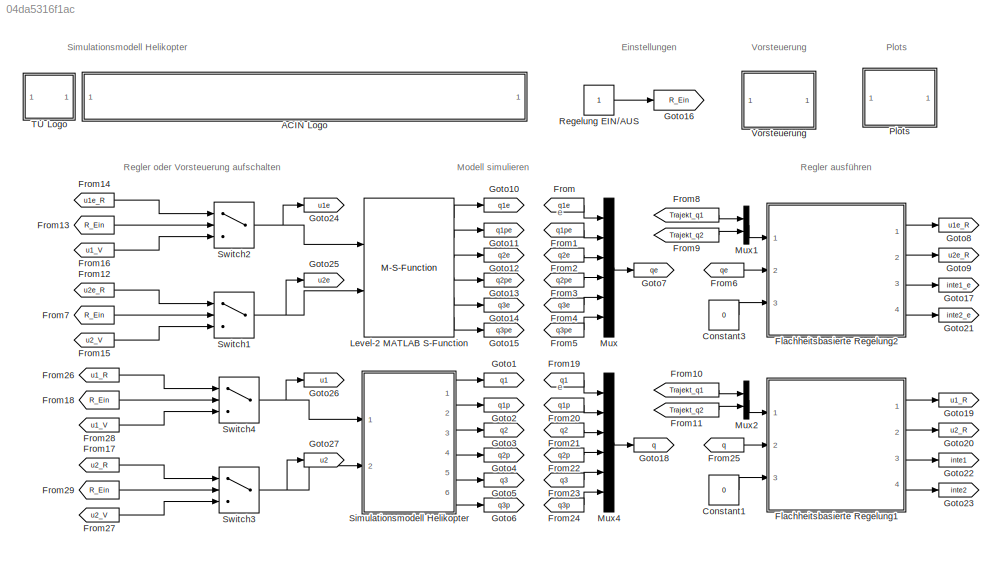
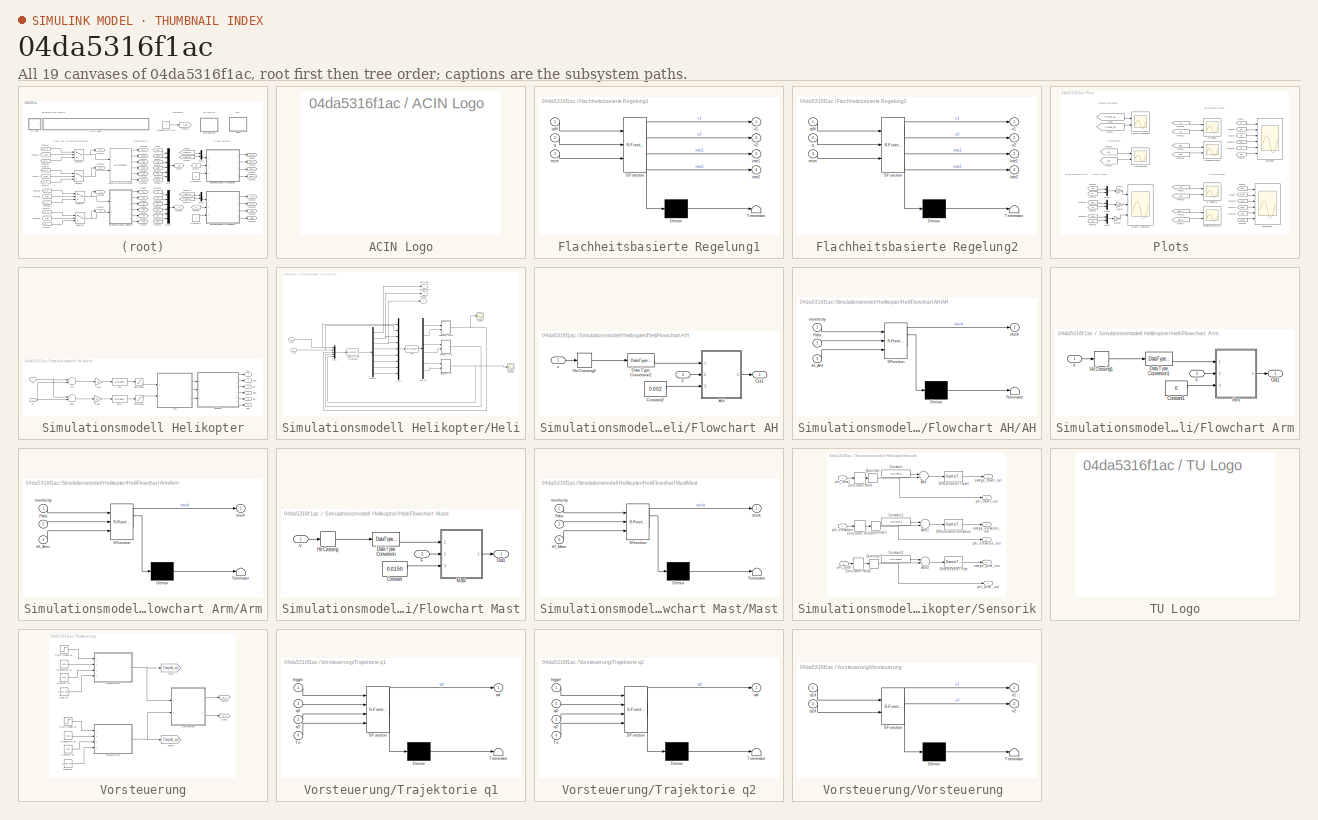
[diagram: thumbnail index - all 19 canvases of the model, root first then tree order]
MODEL slx_04da5316f1ac
KIND model
CONFIG AbsTol = auto
CONFIG FixedStep = auto
CONFIG InitFcn = Initialisierung
CONFIG MaxStep = auto
CONFIG MinStep = auto
CONFIG PostLoadFcn = , if any(exist('dsrtsu_mdlpostloadfcn', 'file') == [2, 3, 6]), try dsrtsu_mdlpostloadfcn('Execute', bdroot); catch fprintf('Error in PostLoadFcn (dsrtsu_mdlpostloadfcn) for model "%s":\n %s\n', bdroot, lasterr); end, end, \n
CONFIG RelTol = 1e-2
CONFIG SampleTimeConstraint = Unconstrained
CONFIG Solver = ode113
CONFIG SolverMode = Auto
CONFIG SolverName = ode113
CONFIG StartTime = 0.0
CONFIG StopTime = 50
BLOCK [SubSystem] ACIN Logo
  Ports = []
  RequestExecContextInheritance = off
  UserDataPersistent = on
  Variant = off
BLOCK [Constant] Constant1
  Value = 0
BLOCK [Constant] Constant3
  Value = 0
BLOCK [SubSystem] Flachheitsbasierte Regelung1
  ErrorFcn = Stateflow.Translate.translate
  PermitHierarchicalResolution = ExplicitOnly
  Ports = [3, 4]
  RequestExecContextInheritance = off
  SFBlockType = MATLAB Function
  TreatAsAtomicUnit = on
  Variant = off
BLOCK [Demux] Flachheitsbasierte Regelung1/ Demux 
  Outputs = 1
  Ports = [1, 1]
BLOCK [S-Function] Flachheitsbasierte Regelung1/ SFunction 
  EnableBusSupport = on
  FunctionName = sf_sfun
  Parameters = Ta,regPar,sysPar
  PortCounts = [3 5]
  Ports = [3, 5]
  SFunctionDeploymentMode = off
  Tag = Stateflow S-Function Sim_Helikopter 8
BLOCK [Terminator] Flachheitsbasierte Regelung1/ Terminator 
BLOCK [Outport] Flachheitsbasierte Regelung1/inte1
  IconDisplay = Port number
  Port = 3
BLOCK [Outport] Flachheitsbasierte Regelung1/inte2
  IconDisplay = Port number
  Port = 4
BLOCK [Inport] Flachheitsbasierte Regelung1/q
  IconDisplay = Port number
  Port = 2
BLOCK [Inport] Flachheitsbasierte Regelung1/qdV
  IconDisplay = Port number
BLOCK [Inport] Flachheitsbasierte Regelung1/reset
  IconDisplay = Port number
  Port = 3
BLOCK [Outport] Flachheitsbasierte Regelung1/v1
  IconDisplay = Port number
BLOCK [Outport] Flachheitsbasierte Regelung1/v2
  IconDisplay = Port number
  Port = 2
BLOCK [SubSystem] Flachheitsbasierte Regelung2
  ErrorFcn = Stateflow.Translate.translate
  PermitHierarchicalResolution = ExplicitOnly
  Ports = [3, 4]
  RequestExecContextInheritance = off
  SFBlockType = MATLAB Function
  TreatAsAtomicUnit = on
  Variant = off
BLOCK [Demux] Flachheitsbasierte Regelung2/ Demux 
  Outputs = 1
  Ports = [1, 1]
BLOCK [S-Function] Flachheitsbasierte Regelung2/ SFunction 
  EnableBusSupport = on
  FunctionName = sf_sfun
  Parameters = Ta,regPar,sysPar
  PortCounts = [3 5]
  Ports = [3, 5]
  SFunctionDeploymentMode = off
  Tag = Stateflow S-Function Sim_Helikopter 4
BLOCK [Terminator] Flachheitsbasierte Regelung2/ Terminator 
BLOCK [Outport] Flachheitsbasierte Regelung2/inte1
  IconDisplay = Port number
  Port = 3
BLOCK [Outport] Flachheitsbasierte Regelung2/inte2
  IconDisplay = Port number
  Port = 4
BLOCK [Inport] Flachheitsbasierte Regelung2/q
  IconDisplay = Port number
  Port = 2
BLOCK [Inport] Flachheitsbasierte Regelung2/qdV
  IconDisplay = Port number
BLOCK [Inport] Flachheitsbasierte Regelung2/reset
  IconDisplay = Port number
  Port = 3
BLOCK [Outport] Flachheitsbasierte Regelung2/v1
  IconDisplay = Port number
BLOCK [Outport] Flachheitsbasierte Regelung2/v2
  IconDisplay = Port number
  Port = 2
BLOCK [From] From
  GotoTag = q1e
  TagVisibility = global
BLOCK [From] From1
  GotoTag = q1pe
  TagVisibility = global
BLOCK [From] From10
  GotoTag = Trajekt_q1
  TagVisibility = global
BLOCK [From] From11
  GotoTag = Trajekt_q2
  TagVisibility = global
BLOCK [From] From12
  GotoTag = u2e_R
  TagVisibility = global
BLOCK [From] From13
  GotoTag = R_Ein
  TagVisibility = global
BLOCK [From] From14
  GotoTag = u1e_R
  TagVisibility = global
BLOCK [From] From15
  GotoTag = u2_V
  TagVisibility = global
BLOCK [From] From16
  GotoTag = u1_V
  TagVisibility = global
BLOCK [From] From17
  GotoTag = u2_R
  TagVisibility = global
BLOCK [From] From18
  GotoTag = R_Ein
  TagVisibility = global
BLOCK [From] From19
  GotoTag = q1
  TagVisibility = global
BLOCK [From] From2
  GotoTag = q2e
  TagVisibility = global
BLOCK [From] From20
  GotoTag = q1p
  TagVisibility = global
BLOCK [From] From21
  GotoTag = q2
  TagVisibility = global
BLOCK [From] From22
  GotoTag = q2p
  TagVisibility = global
BLOCK [From] From23
  GotoTag = q3
  TagVisibility = global
BLOCK [From] From24
  GotoTag = q3p
  TagVisibility = global
BLOCK [From] From25
  GotoTag = q
  TagVisibility = global
BLOCK [From] From26
  GotoTag = u1_R
  TagVisibility = global
BLOCK [From] From27
  GotoTag = u2_V
  TagVisibility = global
BLOCK [From] From28
  GotoTag = u1_V
  TagVisibility = global
BLOCK [From] From29
  GotoTag = R_Ein
  TagVisibility = global
BLOCK [From] From3
  GotoTag = q2pe
  TagVisibility = global
BLOCK [From] From4
  GotoTag = q3e
  TagVisibility = global
BLOCK [From] From5
  GotoTag = q3pe
  TagVisibility = global
BLOCK [From] From6
  GotoTag = qe
  TagVisibility = global
BLOCK [From] From7
  GotoTag = R_Ein
  TagVisibility = global
BLOCK [From] From8
  GotoTag = Trajekt_q1
  TagVisibility = global
BLOCK [From] From9
  GotoTag = Trajekt_q2
  TagVisibility = global
BLOCK [Goto] Goto1
  GotoTag = q1
  TagVisibility = global
BLOCK [Goto] Goto10
  GotoTag = q1e
  TagVisibility = global
BLOCK [Goto] Goto11
  GotoTag = q1pe
  TagVisibility = global
BLOCK [Goto] Goto12
  GotoTag = q2e
  TagVisibility = global
BLOCK [Goto] Goto13
  GotoTag = q2pe
  TagVisibility = global
BLOCK [Goto] Goto14
  GotoTag = q3e
  TagVisibility = global
BLOCK [Goto] Goto15
  GotoTag = q3pe
  TagVisibility = global
BLOCK [Goto] Goto16
  GotoTag = R_Ein
  TagVisibility = global
BLOCK [Goto] Goto17
  GotoTag = inte1_e
  TagVisibility = global
BLOCK [Goto] Goto18
  GotoTag = q
  TagVisibility = global
BLOCK [Goto] Goto19
  GotoTag = u1_R
  TagVisibility = global
BLOCK [Goto] Goto2
  GotoTag = q1p
  TagVisibility = global
BLOCK [Goto] Goto20
  GotoTag = u2_R
  TagVisibility = global
BLOCK [Goto] Goto21
  GotoTag = inte2_e
  TagVisibility = global
BLOCK [Goto] Goto22
  GotoTag = inte1
  TagVisibility = global
BLOCK [Goto] Goto23
  GotoTag = inte2
  TagVisibility = global
BLOCK [Goto] Goto24
  GotoTag = u1e
  TagVisibility = global
BLOCK [Goto] Goto25
  GotoTag = u2e
  TagVisibility = global
BLOCK [Goto] Goto26
  GotoTag = u1
  TagVisibility = global
BLOCK [Goto] Goto27
  GotoTag = u2
  TagVisibility = global
BLOCK [Goto] Goto3
  GotoTag = q2
  TagVisibility = global
BLOCK [Goto] Goto4
  GotoTag = q2p
  TagVisibility = global
BLOCK [Goto] Goto5
  GotoTag = q3
  TagVisibility = global
BLOCK [Goto] Goto6
  GotoTag = q3p
  TagVisibility = global
BLOCK [Goto] Goto7
  GotoTag = qe
  TagVisibility = global
BLOCK [Goto] Goto8
  GotoTag = u1e_R
  TagVisibility = global
BLOCK [Goto] Goto9
  GotoTag = u2e_R
  TagVisibility = global
BLOCK [M-S-Function] Level-2 MATLAB S-Function
  FunctionName = Heli_einfach
  Parameters = sysPar.xR [sysPar.a1 sysPar.a2 sysPar.a3 sysPar.b1 sysPar.b2 sysPar.b3]
  Ports = [2, 6]
BLOCK [Mux] Mux
  DisplayOption = bar
  Inputs = 6
  Ports = [6, 1]
BLOCK [Mux] Mux1
  DisplayOption = bar
  Inputs = 2
  Ports = [2, 1]
BLOCK [Mux] Mux2
  DisplayOption = bar
  Inputs = 2
  Ports = [2, 1]
BLOCK [Mux] Mux4
  DisplayOption = bar
  Inputs = 6
  Ports = [6, 1]
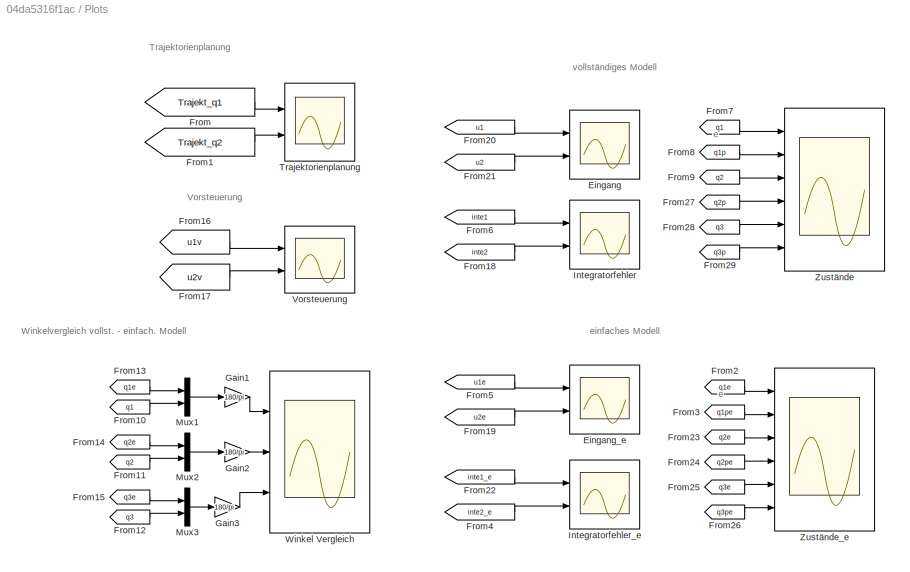
BLOCK [SubSystem] Plots 
  Ports = []
  RequestExecContextInheritance = off
  Variant = off
BLOCK [Scope] Plots /Eingang
  NumInputPorts = 2
  Ports = [2]
  ScopeSpecificationString = Simulink.scopes.TimeScopeBlockCfg('CurrentConfiguration', extmgr.ConfigurationSet(extmgr.Configuration('Core','General UI',true),extmgr.Configuration('Core','Source UI',true),extmgr.Configuration('Sources','WiredSimulink',true,'DataLoggingVariableName','ScopeData8'),extmgr.Configuration('Visuals','Time Domain',true,'SerializedDisplays',{struct('MinYLimReal','-0.25495','MaxYLimReal','0.91248','YLab...<+1964ch>
BLOCK [Scope] Plots /Eingang_e
  NumInputPorts = 2
  Ports = [2]
  ScopeSpecificationString = Simulink.scopes.TimeScopeBlockCfg('CurrentConfiguration', extmgr.ConfigurationSet(extmgr.Configuration('Core','General UI',true),extmgr.Configuration('Core','Source UI',true),extmgr.Configuration('Sources','WiredSimulink',true,'DataLoggingVariableName','ScopeData2'),extmgr.Configuration('Visuals','Time Domain',true,'SerializedDisplays',{struct('MinYLimReal','-0.19617','MaxYLimReal','1.21881','YLab...<+1984ch>
BLOCK [From] Plots /From
  GotoTag = Trajekt_q1
  TagVisibility = global
BLOCK [From] Plots /From1
  GotoTag = Trajekt_q2
  TagVisibility = global
BLOCK [From] Plots /From10
  GotoTag = q1
  TagVisibility = global
BLOCK [From] Plots /From11
  GotoTag = q2
  TagVisibility = global
BLOCK [From] Plots /From12
  GotoTag = q3
  TagVisibility = global
BLOCK [From] Plots /From13
  GotoTag = q1e
  TagVisibility = global
BLOCK [From] Plots /From14
  GotoTag = q2e
  TagVisibility = global
BLOCK [From] Plots /From15
  GotoTag = q3e
  TagVisibility = global
BLOCK [From] Plots /From16
  GotoTag = u1v
BLOCK [From] Plots /From17
  GotoTag = u2v
BLOCK [From] Plots /From18
  GotoTag = inte2
  TagVisibility = global
BLOCK [From] Plots /From19
  GotoTag = u2e
  TagVisibility = global
BLOCK [From] Plots /From2
  GotoTag = q1e
  TagVisibility = global
BLOCK [From] Plots /From20
  GotoTag = u1
  TagVisibility = global
BLOCK [From] Plots /From21
  GotoTag = u2
  TagVisibility = global
BLOCK [From] Plots /From22
  GotoTag = inte1_e
  TagVisibility = global
BLOCK [From] Plots /From23
  GotoTag = q2e
  TagVisibility = global
BLOCK [From] Plots /From24
  GotoTag = q2pe
  TagVisibility = global
BLOCK [From] Plots /From25
  GotoTag = q3e
  TagVisibility = global
BLOCK [From] Plots /From26
  GotoTag = q3pe
  TagVisibility = global
BLOCK [From] Plots /From27
  GotoTag = q2p
  TagVisibility = global
BLOCK [From] Plots /From28
  GotoTag = q3
  TagVisibility = global
BLOCK [From] Plots /From29
  GotoTag = q3p
  TagVisibility = global
BLOCK [From] Plots /From3
  GotoTag = q1pe
  TagVisibility = global
BLOCK [From] Plots /From4
  GotoTag = inte2_e
  TagVisibility = global
BLOCK [From] Plots /From5
  GotoTag = u1e
  TagVisibility = global
BLOCK [From] Plots /From6
  GotoTag = inte1
  TagVisibility = global
BLOCK [From] Plots /From7
  GotoTag = q1
  TagVisibility = global
BLOCK [From] Plots /From8
  GotoTag = q1p
  TagVisibility = global
BLOCK [From] Plots /From9
  GotoTag = q2
  TagVisibility = global
BLOCK [Gain] Plots /Gain1
  Gain = 180/pi
BLOCK [Gain] Plots /Gain2
  Gain = 180/pi
BLOCK [Gain] Plots /Gain3
  Gain = 180/pi
BLOCK [Scope] Plots /Integratorfehler
  NumInputPorts = 2
  Ports = [2]
  ScopeSpecificationString = Simulink.scopes.TimeScopeBlockCfg('CurrentConfiguration', extmgr.ConfigurationSet(extmgr.Configuration('Core','General UI',true),extmgr.Configuration('Core','Source UI',true),extmgr.Configuration('Sources','WiredSimulink',true,'DataLoggingVariableName','ScopeData1'),extmgr.Configuration('Visuals','Time Domain',true,'SerializedDisplays',{struct('MinYLimReal','-0.33497','MaxYLimReal','0.12383','YLab...<+1970ch>
BLOCK [Scope] Plots /Integratorfehler_e
  NumInputPorts = 2
  Ports = [2]
  ScopeSpecificationString = Simulink.scopes.TimeScopeBlockCfg('CurrentConfiguration', extmgr.ConfigurationSet(extmgr.Configuration('Core','General UI',true),extmgr.Configuration('Core','Source UI',true),extmgr.Configuration('Sources','WiredSimulink',true,'DataLoggingVariableName','ScopeData3'),extmgr.Configuration('Visuals','Time Domain',true,'SerializedDisplays',{struct('MinYLimReal','-0.00005','MaxYLimReal','0.00009','YLab...<+1971ch>
BLOCK [Mux] Plots /Mux1
  DisplayOption = bar
  Inputs = 2
  Ports = [2, 1]
BLOCK [Mux] Plots /Mux2
  DisplayOption = bar
  Inputs = 2
  Ports = [2, 1]
BLOCK [Mux] Plots /Mux3
  DisplayOption = bar
  Inputs = 2
  Ports = [2, 1]
BLOCK [Scope] Plots /Trajektorienplanung
  NumInputPorts = 2
  Ports = [2]
  ScopeSpecificationString = Simulink.scopes.TimeScopeBlockCfg('CurrentConfiguration', extmgr.ConfigurationSet(extmgr.Configuration('Core','General UI',true),extmgr.Configuration('Core','Source UI',true),extmgr.Configuration('Sources','WiredSimulink',true,'DataLoggingVariableName','ScopeData3'),extmgr.Configuration('Visuals','Time Domain',true,'SerializedDisplays',{struct('MinYLimReal','-1.44786','MaxYLimReal','7.14219','YLab...<+2126ch>
BLOCK [Scope] Plots /Vorsteuerung
  NumInputPorts = 2
  Ports = [2]
  ScopeSpecificationString = Simulink.scopes.TimeScopeBlockCfg('CurrentConfiguration', extmgr.ConfigurationSet(extmgr.Configuration('Core','General UI',true),extmgr.Configuration('Core','Source UI',true),extmgr.Configuration('Sources','WiredSimulink',true,'DataLoggingVariableName','ScopeData4'),extmgr.Configuration('Visuals','Time Domain',true,'SerializedDisplays',{struct('MinYLimReal','-0.12606','MaxYLimReal','1.24369','YLab...<+1973ch>
BLOCK [Scope] Plots /Winkel Vergleich
  NumInputPorts = 3
  Ports = [3]
  ScopeSpecificationString = Simulink.scopes.TimeScopeBlockCfg('CurrentConfiguration', extmgr.ConfigurationSet(extmgr.Configuration('Core','General UI',true),extmgr.Configuration('Core','Source UI',true),extmgr.Configuration('Sources','WiredSimulink',true,'DataLoggingVariableName','ScopeData2'),extmgr.Configuration('Visuals','Time Domain',true,'SerializedDisplays',{struct('MinYLimReal','-45.76355','MaxYLimReal','411.87195','Y...<+2771ch>
BLOCK [Scope] Plots /Zustände 
  NumInputPorts = 6
  Ports = [6]
  ScopeSpecificationString = Simulink.scopes.TimeScopeBlockCfg('CurrentConfiguration', extmgr.ConfigurationSet(extmgr.Configuration('Core','General UI',true),extmgr.Configuration('Core','Source UI',true),extmgr.Configuration('Sources','WiredSimulink',true,'DataLoggingVariableName','ScopeData1'),extmgr.Configuration('Visuals','Time Domain',true,'SerializedDisplays',{struct('MinYLimReal','-3.14677','MaxYLimReal','0.57889','YLab...<+4849ch>
BLOCK [Scope] Plots /Zustände_e
  NumInputPorts = 6
  Ports = [6]
  ScopeSpecificationString = Simulink.scopes.TimeScopeBlockCfg('CurrentConfiguration', extmgr.ConfigurationSet(extmgr.Configuration('Core','General UI',true),extmgr.Configuration('Core','Source UI',true),extmgr.Configuration('Sources','WiredSimulink',true,'DataLoggingVariableName','ScopeData6'),extmgr.Configuration('Visuals','Time Domain',true,'SerializedDisplays',{struct('MinYLimReal','-0.7854','MaxYLimReal','7.0686','YLabel...<+4830ch>
BLOCK [Constant] Regelung EIN//AUS
BLOCK [SubSystem] Simulationsmodell Helikopter
  Ports = [2, 6]
  RequestExecContextInheritance = off
  Variant = off
BLOCK [Sum] Simulationsmodell Helikopter/Add
  InputSameDT = off
  OutDataTypeStr = Inherit: Inherit via internal rule
  Ports = [2, 1]
  SaturateOnIntegerOverflow = off
BLOCK [Sum] Simulationsmodell Helikopter/Add1
  InputSameDT = off
  Inputs = +-
  OutDataTypeStr = Inherit: Inherit via internal rule
  Ports = [2, 1]
  SaturateOnIntegerOverflow = off
BLOCK [MATLABFcn] Simulationsmodell Helikopter/F2U
  MATLABFcn = F2U(u(1))
  Output1D = off
  OutputDimensions = 1
  Ports = [1, 1]
BLOCK [MATLABFcn] Simulationsmodell Helikopter/F2U1
  MATLABFcn = F2U(u(1))
  Output1D = off
  OutputDimensions = 1
  Ports = [1, 1]
BLOCK [Gain] Simulationsmodell Helikopter/Gain
  Gain = 1/2
  OutDataTypeStr = Inherit: Inherit via internal rule
  ParamDataTypeStr = Inherit: Inherit via internal rule
  SaturateOnIntegerOverflow = off
BLOCK [Gain] Simulationsmodell Helikopter/Gain1
  Gain = 1/2
  OutDataTypeStr = Inherit: Inherit via internal rule
  ParamDataTypeStr = Inherit: Inherit via internal rule
  SaturateOnIntegerOverflow = off
BLOCK [SubSystem] Simulationsmodell Helikopter/Heli
  Ports = [2, 3]
  RequestExecContextInheritance = off
  Variant = off
BLOCK [Demux] Simulationsmodell Helikopter/Heli/Demux
  Outputs = 8
  Ports = [1, 8]
BLOCK [Demux] Simulationsmodell Helikopter/Heli/Demux1
  Outputs = 6
  Ports = [1, 6]
BLOCK [SubSystem] Simulationsmodell Helikopter/Heli/Flowchart AH
  Ports = [2, 1]
  RequestExecContextInheritance = off
  Variant = off
BLOCK [SubSystem] Simulationsmodell Helikopter/Heli/Flowchart AH/AH
  ErrorFcn = Stateflow.Translate.translate
  PermitHierarchicalResolution = ExplicitOnly
  Ports = [3, 1]
  RequestExecContextInheritance = off
  SFBlockType = Chart
  TreatAsAtomicUnit = on
  Variant = off
BLOCK [Demux] Simulationsmodell Helikopter/Heli/Flowchart AH/AH/ Demux 
  Outputs = 1
  Ports = [1, 1]
BLOCK [S-Function] Simulationsmodell Helikopter/Heli/Flowchart AH/AH/ SFunction 
  EnableBusSupport = on
  FunctionName = sf_sfun
  PortCounts = [3 2]
  Ports = [3, 2]
  SFunctionDeploymentMode = off
  Tag = Stateflow S-Function Sim_Helikopter 5
BLOCK [Terminator] Simulationsmodell Helikopter/Heli/Flowchart AH/AH/ Terminator 
BLOCK [Inport] Simulationsmodell Helikopter/Heli/Flowchart AH/AH/Fabs
  IconDisplay = Port number
  Port = 2
BLOCK [Inport] Simulationsmodell Helikopter/Heli/Flowchart AH/AH/novelocity
  IconDisplay = Port number
BLOCK [Inport] Simulationsmodell Helikopter/Heli/Flowchart AH/AH/rH_AH
  IconDisplay = Port number
  Port = 3
BLOCK [Outport] Simulationsmodell Helikopter/Heli/Flowchart AH/AH/stuck
  IconDisplay = Port number
BLOCK [Constant] Simulationsmodell Helikopter/Heli/Flowchart AH/Constant2
  Value = 0.002
BLOCK [DataTypeConversion] Simulationsmodell Helikopter/Heli/Flowchart AH/Data Type Conversion2
  OutDataTypeStr = double
BLOCK [Inport] Simulationsmodell Helikopter/Heli/Flowchart AH/F
  IconDisplay = Port number
  Port = 2
BLOCK [HitCross] Simulationsmodell Helikopter/Heli/Flowchart AH/Hit Crossing2
  Ports = [1, 1]
  ZeroCross = off
BLOCK [Outport] Simulationsmodell Helikopter/Heli/Flowchart AH/Out1
  IconDisplay = Port number
BLOCK [Inport] Simulationsmodell Helikopter/Heli/Flowchart AH/v
  IconDisplay = Port number
BLOCK [SubSystem] Simulationsmodell Helikopter/Heli/Flowchart Arm
  Ports = [2, 1]
  RequestExecContextInheritance = off
  Variant = off
BLOCK [SubSystem] Simulationsmodell Helikopter/Heli/Flowchart Arm/Arm
  ErrorFcn = Stateflow.Translate.translate
  PermitHierarchicalResolution = ExplicitOnly
  Ports = [3, 1]
  RequestExecContextInheritance = off
  SFBlockType = Chart
  TreatAsAtomicUnit = on
  Variant = off
BLOCK [Demux] Simulationsmodell Helikopter/Heli/Flowchart Arm/Arm/ Demux 
  Outputs = 1
  Ports = [1, 1]
BLOCK [S-Function] Simulationsmodell Helikopter/Heli/Flowchart Arm/Arm/ SFunction 
  EnableBusSupport = on
  FunctionName = sf_sfun
  PortCounts = [3 2]
  Ports = [3, 2]
  SFunctionDeploymentMode = off
  Tag = Stateflow S-Function Sim_Helikopter 6
BLOCK [Terminator] Simulationsmodell Helikopter/Heli/Flowchart Arm/Arm/ Terminator 
BLOCK [Inport] Simulationsmodell Helikopter/Heli/Flowchart Arm/Arm/Fabs
  IconDisplay = Port number
  Port = 2
BLOCK [Inport] Simulationsmodell Helikopter/Heli/Flowchart Arm/Arm/novelocity
  IconDisplay = Port number
BLOCK [Inport] Simulationsmodell Helikopter/Heli/Flowchart Arm/Arm/rH_Arm
  IconDisplay = Port number
  Port = 3
BLOCK [Outport] Simulationsmodell Helikopter/Heli/Flowchart Arm/Arm/stuck
  IconDisplay = Port number
BLOCK [Constant] Simulationsmodell Helikopter/Heli/Flowchart Arm/Constant1
  Value = 0
BLOCK [DataTypeConversion] Simulationsmodell Helikopter/Heli/Flowchart Arm/Data Type Conversion1
  OutDataTypeStr = double
BLOCK [Inport] Simulationsmodell Helikopter/Heli/Flowchart Arm/F
  IconDisplay = Port number
  Port = 2
BLOCK [HitCross] Simulationsmodell Helikopter/Heli/Flowchart Arm/Hit Crossing1
  Ports = [1, 1]
  ZeroCross = off
BLOCK [Outport] Simulationsmodell Helikopter/Heli/Flowchart Arm/Out1
  IconDisplay = Port number
BLOCK [Inport] Simulationsmodell Helikopter/Heli/Flowchart Arm/v
  IconDisplay = Port number
BLOCK [SubSystem] Simulationsmodell Helikopter/Heli/Flowchart Mast
  Ports = [2, 1]
  RequestExecContextInheritance = off
  Variant = off
BLOCK [Constant] Simulationsmodell Helikopter/Heli/Flowchart Mast/Constant
  Value = 0.0150
BLOCK [DataTypeConversion] Simulationsmodell Helikopter/Heli/Flowchart Mast/Data Type Conversion
  OutDataTypeStr = double
BLOCK [Inport] Simulationsmodell Helikopter/Heli/Flowchart Mast/F
  IconDisplay = Port number
  Port = 2
BLOCK [HitCross] Simulationsmodell Helikopter/Heli/Flowchart Mast/Hit Crossing
  Ports = [1, 1]
  ZeroCross = off
BLOCK [SubSystem] Simulationsmodell Helikopter/Heli/Flowchart Mast/Mast
  ErrorFcn = Stateflow.Translate.translate
  PermitHierarchicalResolution = ExplicitOnly
  Ports = [3, 1]
  RequestExecContextInheritance = off
  SFBlockType = Chart
  TreatAsAtomicUnit = on
  Variant = off
BLOCK [Demux] Simulationsmodell Helikopter/Heli/Flowchart Mast/Mast/ Demux 
  Outputs = 1
  Ports = [1, 1]
BLOCK [S-Function] Simulationsmodell Helikopter/Heli/Flowchart Mast/Mast/ SFunction 
  EnableBusSupport = on
  FunctionName = sf_sfun
  PortCounts = [3 2]
  Ports = [3, 2]
  SFunctionDeploymentMode = off
  Tag = Stateflow S-Function Sim_Helikopter 7
BLOCK [Terminator] Simulationsmodell Helikopter/Heli/Flowchart Mast/Mast/ Terminator 
BLOCK [Inport] Simulationsmodell Helikopter/Heli/Flowchart Mast/Mast/Fabs
  IconDisplay = Port number
  Port = 2
BLOCK [Inport] Simulationsmodell Helikopter/Heli/Flowchart Mast/Mast/novelocity
  IconDisplay = Port number
BLOCK [Inport] Simulationsmodell Helikopter/Heli/Flowchart Mast/Mast/rH_Mast
  IconDisplay = Port number
  Port = 3
BLOCK [Outport] Simulationsmodell Helikopter/Heli/Flowchart Mast/Mast/stuck
  IconDisplay = Port number
BLOCK [Outport] Simulationsmodell Helikopter/Heli/Flowchart Mast/Out1
  IconDisplay = Port number
BLOCK [Inport] Simulationsmodell Helikopter/Heli/Flowchart Mast/v
  IconDisplay = Port number
BLOCK [MATLABFcn] Simulationsmodell Helikopter/Heli/Fres
  MATLABFcn = Fout(u(1),u(2),u(3),u(4),u(5),u(6),u(7),u(8),u(9),parameters)
  Output1D = off
  OutputDimensions = 6
  Ports = [1, 1]
BLOCK [M-S-Function] Simulationsmodell Helikopter/Heli/Level-2 M-file S-Function
  FunctionName = heli_haft_s
  Parameters = initCond, parameters
  Ports = [1, 1]
BLOCK [Mux] Simulationsmodell Helikopter/Heli/Mux
  DisplayOption = bar
  Inputs = 5
  Ports = [5, 1]
BLOCK [Mux] Simulationsmodell Helikopter/Heli/Mux1
  DisplayOption = bar
  Inputs = 9
  Ports = [9, 1]
BLOCK [Scope] Simulationsmodell Helikopter/Heli/Scope
  Ports = [1]
  ScopeSpecificationString = C++SS(StrPVP('Location','[188, 365, 512, 604]'),StrPVP('Open','off'),MxPVP('AxesTitles',24,'struct(''axes1'',''%<SignalLabel>'')'),StrPVP('YMin','-1'),StrPVP('YMax','1'),StrPVP('SaveName','ScopeData2'),StrPVP('DataFormat','StructureWithTime'),StrPVP('LimitDataPoints','off'),StrPVP('BlockParamSampleTime','0'),StrPVP('Decimation','1'),StrPVP('BlockParamSampleInput','off'))
BLOCK [Scope] Simulationsmodell Helikopter/Heli/Scope1
  Ports = [1]
  ScopeSpecificationString = C++SS(StrPVP('Location','[188, 365, 512, 604]'),StrPVP('Open','off'),MxPVP('AxesTitles',24,'struct(''axes1'',''%<SignalLabel>'')'),StrPVP('YMin','-1'),StrPVP('YMax','1'),StrPVP('SaveName','ScopeData11'),StrPVP('DataFormat','StructureWithTime'),StrPVP('LimitDataPoints','off'),StrPVP('BlockParamSampleTime','0'),StrPVP('Decimation','1'),StrPVP('BlockParamSampleInput','off'))
BLOCK [Outport] Simulationsmodell Helikopter/Heli/phi_elevation
  IconDisplay = Port number
  Port = 2
BLOCK [Outport] Simulationsmodell Helikopter/Heli/phi_pitch
  IconDisplay = Port number
  Port = 3
BLOCK [Outport] Simulationsmodell Helikopter/Heli/phi_travel
  IconDisplay = Port number
BLOCK [Inport] Simulationsmodell Helikopter/Heli/u_RL
  IconDisplay = Port number
  Port = 2
BLOCK [Inport] Simulationsmodell Helikopter/Heli/u_RR
  IconDisplay = Port number
BLOCK [Saturate] Simulationsmodell Helikopter/Saturation1
  InputPortMap = u0
  LowerLimit = -15
  Ports = [1, 1]
  UpperLimit = 15
BLOCK [Saturate] Simulationsmodell Helikopter/Saturation2
  InputPortMap = u0
  LowerLimit = -15
  Ports = [1, 1]
  UpperLimit = 15
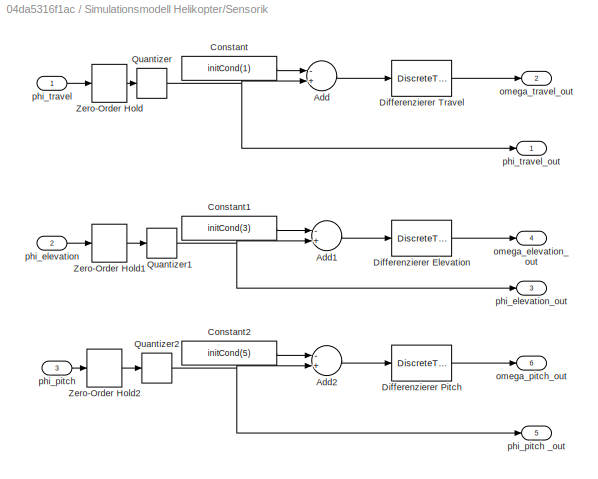
BLOCK [SubSystem] Simulationsmodell Helikopter/Sensorik
  Ports = [3, 6]
  RequestExecContextInheritance = off
  Variant = off
BLOCK [Sum] Simulationsmodell Helikopter/Sensorik/Add
  InputSameDT = off
  Inputs = -+
  OutDataTypeStr = Inherit: Inherit via internal rule
  Ports = [2, 1]
  SaturateOnIntegerOverflow = off
BLOCK [Sum] Simulationsmodell Helikopter/Sensorik/Add1
  InputSameDT = off
  Inputs = -+
  OutDataTypeStr = Inherit: Inherit via internal rule
  Ports = [2, 1]
  SaturateOnIntegerOverflow = off
BLOCK [Sum] Simulationsmodell Helikopter/Sensorik/Add2
  InputSameDT = off
  Inputs = -+
  OutDataTypeStr = Inherit: Inherit via internal rule
  Ports = [2, 1]
  SaturateOnIntegerOverflow = off
BLOCK [Constant] Simulationsmodell Helikopter/Sensorik/Constant
  Value = initCond(1)
BLOCK [Constant] Simulationsmodell Helikopter/Sensorik/Constant1
  Value = initCond(3)
BLOCK [Constant] Simulationsmodell Helikopter/Sensorik/Constant2
  Value = initCond(5)
BLOCK [DiscreteTransferFcn] Simulationsmodell Helikopter/Sensorik/Differenzierer Elevation
  Denominator = [1.000000000000000  -0.980198673306755]
  InputPortMap = u0
  Numerator = [20.000000000000000 -19.999999999999996]
  Ports = [1, 1]
  SampleTime = 1e-3
BLOCK [DiscreteTransferFcn] Simulationsmodell Helikopter/Sensorik/Differenzierer Pitch
  Denominator = [1.000000000000000  -0.980198673306755]
  InputPortMap = u0
  Numerator = [20.000000000000000 -19.999999999999996]
  Ports = [1, 1]
  SampleTime = 1e-3
BLOCK [DiscreteTransferFcn] Simulationsmodell Helikopter/Sensorik/Differenzierer Travel
  Denominator = [1.000000000000000  -0.980198673306755]
  InputPortMap = u0
  Numerator = [20.000000000000000 -19.999999999999996]
  Ports = [1, 1]
  SampleTime = 1e-3
BLOCK [Quantizer] Simulationsmodell Helikopter/Sensorik/Quantizer
  QuantizationInterval = 2*pi/2^13
BLOCK [Quantizer] Simulationsmodell Helikopter/Sensorik/Quantizer1
  QuantizationInterval = 2*pi/4096
BLOCK [Quantizer] Simulationsmodell Helikopter/Sensorik/Quantizer2
  QuantizationInterval = 2*pi/4096
BLOCK [ZeroOrderHold] Simulationsmodell Helikopter/Sensorik/Zero-Order Hold
  SampleTime = 1e-3
BLOCK [ZeroOrderHold] Simulationsmodell Helikopter/Sensorik/Zero-Order Hold1
  SampleTime = 1e-3
BLOCK [ZeroOrderHold] Simulationsmodell Helikopter/Sensorik/Zero-Order Hold2
  SampleTime = 1e-3
BLOCK [Outport] Simulationsmodell Helikopter/Sensorik/omega_elevation_out
  IconDisplay = Port number
  Port = 4
BLOCK [Outport] Simulationsmodell Helikopter/Sensorik/omega_pitch_out
  IconDisplay = Port number
  Port = 6
BLOCK [Outport] Simulationsmodell Helikopter/Sensorik/omega_travel_out
  IconDisplay = Port number
  Port = 2
BLOCK [Inport] Simulationsmodell Helikopter/Sensorik/phi_elevation
  IconDisplay = Port number
  Port = 2
BLOCK [Outport] Simulationsmodell Helikopter/Sensorik/phi_elevation_out
  IconDisplay = Port number
  Port = 3
BLOCK [Inport] Simulationsmodell Helikopter/Sensorik/phi_pitch
  IconDisplay = Port number
  Port = 3
BLOCK [Outport] Simulationsmodell Helikopter/Sensorik/phi_pitch _out
  IconDisplay = Port number
  Port = 5
BLOCK [Inport] Simulationsmodell Helikopter/Sensorik/phi_travel
  IconDisplay = Port number
BLOCK [Outport] Simulationsmodell Helikopter/Sensorik/phi_travel_out
  IconDisplay = Port number
BLOCK [Outport] Simulationsmodell Helikopter/q1
  IconDisplay = Port number
BLOCK [Outport] Simulationsmodell Helikopter/q1p
  IconDisplay = Port number
  Port = 2
BLOCK [Outport] Simulationsmodell Helikopter/q2
  IconDisplay = Port number
  Port = 3
BLOCK [Outport] Simulationsmodell Helikopter/q2p
  IconDisplay = Port number
  Port = 4
BLOCK [Outport] Simulationsmodell Helikopter/q3
  IconDisplay = Port number
  Port = 5
BLOCK [Outport] Simulationsmodell Helikopter/q3p
  IconDisplay = Port number
  Port = 6
BLOCK [Inport] Simulationsmodell Helikopter/v1
  IconDisplay = Port number
BLOCK [Inport] Simulationsmodell Helikopter/v2
  IconDisplay = Port number
  Port = 2
BLOCK [Switch] Switch1
  Criteria = u2 > Threshold
  InputSameDT = off
  SaturateOnIntegerOverflow = off
  Threshold = 0.5
BLOCK [Switch] Switch2
  Criteria = u2 > Threshold
  InputSameDT = off
  SaturateOnIntegerOverflow = off
  Threshold = 0.5
BLOCK [Switch] Switch3
  Criteria = u2 > Threshold
  InputSameDT = off
  SaturateOnIntegerOverflow = off
  Threshold = 0.5
BLOCK [Switch] Switch4
  Criteria = u2 > Threshold
  InputSameDT = off
  SaturateOnIntegerOverflow = off
  Threshold = 0.5
BLOCK [SubSystem] TU Logo
  Ports = []
  RequestExecContextInheritance = off
  UserDataPersistent = on
  Variant = off
BLOCK [SubSystem] Vorsteuerung
  Ports = []
  RequestExecContextInheritance = off
  Variant = off
BLOCK [Constant] Vorsteuerung/Anfangswert q1
  Value = q10e
BLOCK [Constant] Vorsteuerung/Anfangswert q2
  Value = q20e
BLOCK [Constant] Vorsteuerung/Dauer q1
  Value = sysPar.Tq1_d
BLOCK [Constant] Vorsteuerung/Dauer q2
  Value = sysPar.Tq2_d
BLOCK [Constant] Vorsteuerung/Endwert q1
  Value = q1d
BLOCK [Constant] Vorsteuerung/Endwert q2
  Value = q2d
BLOCK [Goto] Vorsteuerung/Goto
  GotoTag = Trajekt_q1
  TagVisibility = global
BLOCK [Goto] Vorsteuerung/Goto1
  GotoTag = u2_V
  TagVisibility = global
BLOCK [Goto] Vorsteuerung/Goto16
  GotoTag = u1_V
  TagVisibility = global
BLOCK [Goto] Vorsteuerung/Goto2
  GotoTag = Trajekt_q2
  TagVisibility = global
BLOCK [Step] Vorsteuerung/Start-Trigger q1
  SampleTime = 0
  Time = sysPar.Tq1_s
BLOCK [Step] Vorsteuerung/Start-Trigger q2
  SampleTime = 0
  Time = sysPar.Tq2_s
BLOCK [SubSystem] Vorsteuerung/Trajektorie q1
  ErrorFcn = Stateflow.Translate.translate
  PermitHierarchicalResolution = ExplicitOnly
  Ports = [4, 1]
  RequestExecContextInheritance = off
  SFBlockType = MATLAB Function
  TreatAsAtomicUnit = on
  Variant = off
BLOCK [Demux] Vorsteuerung/Trajektorie q1/ Demux 
  Outputs = 1
  Ports = [1, 1]
BLOCK [S-Function] Vorsteuerung/Trajektorie q1/ SFunction 
  EnableBusSupport = on
  FunctionName = sf_sfun
  Parameters = sysPar
  PortCounts = [4 2]
  Ports = [4, 2]
  SFunctionDeploymentMode = off
  Tag = Stateflow S-Function Sim_Helikopter 1
BLOCK [Terminator] Vorsteuerung/Trajektorie q1/ Terminator 
BLOCK [Inport] Vorsteuerung/Trajektorie q1/Te
  IconDisplay = Port number
  Port = 4
BLOCK [Inport] Vorsteuerung/Trajektorie q1/q0
  IconDisplay = Port number
  Port = 2
BLOCK [Inport] Vorsteuerung/Trajektorie q1/qT
  IconDisplay = Port number
  Port = 3
BLOCK [Outport] Vorsteuerung/Trajektorie q1/qd
  IconDisplay = Port number
BLOCK [Inport] Vorsteuerung/Trajektorie q1/trigger
  IconDisplay = Port number
BLOCK [SubSystem] Vorsteuerung/Trajektorie q2
  ErrorFcn = Stateflow.Translate.translate
  PermitHierarchicalResolution = ExplicitOnly
  Ports = [4, 1]
  RequestExecContextInheritance = off
  SFBlockType = MATLAB Function
  TreatAsAtomicUnit = on
  Variant = off
BLOCK [Demux] Vorsteuerung/Trajektorie q2/ Demux 
  Outputs = 1
  Ports = [1, 1]
BLOCK [S-Function] Vorsteuerung/Trajektorie q2/ SFunction 
  EnableBusSupport = on
  FunctionName = sf_sfun
  Parameters = sysPar
  PortCounts = [4 2]
  Ports = [4, 2]
  SFunctionDeploymentMode = off
  Tag = Stateflow S-Function Sim_Helikopter 2
BLOCK [Terminator] Vorsteuerung/Trajektorie q2/ Terminator 
BLOCK [Inport] Vorsteuerung/Trajektorie q2/Te
  IconDisplay = Port number
  Port = 4
BLOCK [Inport] Vorsteuerung/Trajektorie q2/q0
  IconDisplay = Port number
  Port = 2
BLOCK [Inport] Vorsteuerung/Trajektorie q2/qT
  IconDisplay = Port number
  Port = 3
BLOCK [Outport] Vorsteuerung/Trajektorie q2/qd
  IconDisplay = Port number
BLOCK [Inport] Vorsteuerung/Trajektorie q2/trigger
  IconDisplay = Port number
BLOCK [SubSystem] Vorsteuerung/Vorsteuerung 
  ErrorFcn = Stateflow.Translate.translate
  PermitHierarchicalResolution = ExplicitOnly
  Ports = [2, 2]
  RequestExecContextInheritance = off
  SFBlockType = MATLAB Function
  TreatAsAtomicUnit = on
  Variant = off
BLOCK [Demux] Vorsteuerung/Vorsteuerung / Demux 
  Outputs = 1
  Ports = [1, 1]
BLOCK [S-Function] Vorsteuerung/Vorsteuerung / SFunction 
  EnableBusSupport = on
  FunctionName = sf_sfun
  Parameters = sysPar
  PortCounts = [2 3]
  Ports = [2, 3]
  SFunctionDeploymentMode = off
  Tag = Stateflow S-Function Sim_Helikopter 3
BLOCK [Terminator] Vorsteuerung/Vorsteuerung / Terminator 
BLOCK [Inport] Vorsteuerung/Vorsteuerung /q1d
  IconDisplay = Port number
BLOCK [Inport] Vorsteuerung/Vorsteuerung /q2d
  IconDisplay = Port number
  Port = 2
BLOCK [Outport] Vorsteuerung/Vorsteuerung /v1
  IconDisplay = Port number
BLOCK [Outport] Vorsteuerung/Vorsteuerung /v2
  IconDisplay = Port number
  Port = 2
ANNOTATION (root): Einstellungen
ANNOTATION (root): Modell simulieren
ANNOTATION (root): Plots
ANNOTATION (root): Regler ausführen
ANNOTATION (root): Regler oder Vorsteuerung aufschalten
ANNOTATION (root): Simulationsmodell Helikopter
ANNOTATION (root): Vorsteuerung
ANNOTATION (root): e
ANNOTATION Plots : Trajektorienplanung
ANNOTATION Plots : Vorsteuerung
ANNOTATION Plots : Winkelvergleich vollst. - einfach. Modell
ANNOTATION Plots : einfaches Modell
ANNOTATION Plots : vollständiges Modell
ANNOTATION Plots : e
LINE Constant1:1 -> Flachheitsbasierte Regelung1:3
LINE Constant3:1 -> Flachheitsbasierte Regelung2:3
LINE Flachheitsbasierte Regelung1:1 -> Goto19:1
LINE Flachheitsbasierte Regelung1:2 -> Goto20:1
LINE Flachheitsbasierte Regelung1:3 -> Goto22:1
LINE Flachheitsbasierte Regelung1:4 -> Goto23:1
LINE Flachheitsbasierte Regelung2:1 -> Goto8:1
LINE Flachheitsbasierte Regelung2:2 -> Goto9:1
LINE Flachheitsbasierte Regelung2:3 -> Goto17:1
LINE Flachheitsbasierte Regelung2:4 -> Goto21:1
LINE From10:1 -> Mux2:1
LINE From11:1 -> Mux2:2
LINE From12:1 -> Switch1:1
LINE From13:1 -> Switch2:2
LINE From14:1 -> Switch2:1
LINE From15:1 -> Switch1:3
LINE From16:1 -> Switch2:3
LINE From17:1 -> Switch3:1
LINE From18:1 -> Switch4:2
LINE From19:1 -> Mux4:1
LINE From1:1 -> Mux:2
LINE From20:1 -> Mux4:2
LINE From21:1 -> Mux4:3
LINE From22:1 -> Mux4:4
LINE From23:1 -> Mux4:5
LINE From24:1 -> Mux4:6
LINE From25:1 -> Flachheitsbasierte Regelung1:2
LINE From26:1 -> Switch4:1
LINE From27:1 -> Switch3:3
LINE From28:1 -> Switch4:3
LINE From29:1 -> Switch3:2
LINE From2:1 -> Mux:3
LINE From3:1 -> Mux:4
LINE From4:1 -> Mux:5
LINE From5:1 -> Mux:6
LINE From6:1 -> Flachheitsbasierte Regelung2:2
LINE From7:1 -> Switch1:2
LINE From8:1 -> Mux1:1
LINE From9:1 -> Mux1:2
LINE From:1 -> Mux:1
LINE Level-2 MATLAB S-Function:1 -> Goto10:1
LINE Level-2 MATLAB S-Function:2 -> Goto11:1
LINE Level-2 MATLAB S-Function:3 -> Goto12:1
LINE Level-2 MATLAB S-Function:4 -> Goto13:1
LINE Level-2 MATLAB S-Function:5 -> Goto14:1
LINE Level-2 MATLAB S-Function:6 -> Goto15:1
LINE Mux1:1 -> Flachheitsbasierte Regelung2:1
LINE Mux2:1 -> Flachheitsbasierte Regelung1:1
LINE Mux4:1 -> Goto18:1
LINE Mux:1 -> Goto7:1
LINE Plots /From10:1 -> Plots /Mux1:2
LINE Plots /From11:1 -> Plots /Mux2:2
LINE Plots /From12:1 -> Plots /Mux3:2
LINE Plots /From13:1 -> Plots /Mux1:1
LINE Plots /From14:1 -> Plots /Mux2:1
LINE Plots /From15:1 -> Plots /Mux3:1
LINE Plots /From16:1 -> Plots /Vorsteuerung:1
LINE Plots /From17:1 -> Plots /Vorsteuerung:2
LINE Plots /From18:1 -> Plots /Integratorfehler:2
LINE Plots /From19:1 -> Plots /Eingang_e:2
LINE Plots /From1:1 -> Plots /Trajektorienplanung:2
LINE Plots /From20:1 -> Plots /Eingang:1
LINE Plots /From21:1 -> Plots /Eingang:2
LINE Plots /From22:1 -> Plots /Integratorfehler_e:1
LINE Plots /From23:1 -> Plots /Zustände_e:3
LINE Plots /From24:1 -> Plots /Zustände_e:4
LINE Plots /From25:1 -> Plots /Zustände_e:5
LINE Plots /From26:1 -> Plots /Zustände_e:6
LINE Plots /From27:1 -> Plots /Zustände :4
LINE Plots /From28:1 -> Plots /Zustände :5
LINE Plots /From29:1 -> Plots /Zustände :6
LINE Plots /From2:1 -> Plots /Zustände_e:1
LINE Plots /From3:1 -> Plots /Zustände_e:2
LINE Plots /From4:1 -> Plots /Integratorfehler_e:2
LINE Plots /From5:1 -> Plots /Eingang_e:1
LINE Plots /From6:1 -> Plots /Integratorfehler:1
LINE Plots /From7:1 -> Plots /Zustände :1
LINE Plots /From8:1 -> Plots /Zustände :2
LINE Plots /From9:1 -> Plots /Zustände :3
LINE Plots /From:1 -> Plots /Trajektorienplanung:1
LINE Plots /Gain1:1 -> Plots /Winkel Vergleich:1
LINE Plots /Gain2:1 -> Plots /Winkel Vergleich:2
LINE Plots /Gain3:1 -> Plots /Winkel Vergleich:3
LINE Plots /Mux1:1 -> Plots /Gain1:1
LINE Plots /Mux2:1 -> Plots /Gain2:1
LINE Plots /Mux3:1 -> Plots /Gain3:1
LINE Regelung EIN//AUS:1 -> Goto16:1
LINE Simulationsmodell Helikopter/Add1:1 -> Simulationsmodell Helikopter/Gain1:1
LINE Simulationsmodell Helikopter/Add:1 -> Simulationsmodell Helikopter/Gain:1
LINE Simulationsmodell Helikopter/F2U1:1 -> Simulationsmodell Helikopter/Saturation1:1
LINE Simulationsmodell Helikopter/F2U:1 -> Simulationsmodell Helikopter/Saturation2:1
LINE Simulationsmodell Helikopter/Gain1:1 -> Simulationsmodell Helikopter/F2U1:1
LINE Simulationsmodell Helikopter/Gain:1 -> Simulationsmodell Helikopter/F2U:1
LINE Simulationsmodell Helikopter/Heli/Demux1:1 -> Simulationsmodell Helikopter/Heli/Flowchart Mast:1
LINE Simulationsmodell Helikopter/Heli/Demux1:2 -> Simulationsmodell Helikopter/Heli/Flowchart Mast:2
LINE Simulationsmodell Helikopter/Heli/Demux1:3 -> Simulationsmodell Helikopter/Heli/Flowchart Arm:1
LINE Simulationsmodell Helikopter/Heli/Demux1:4 -> Simulationsmodell Helikopter/Heli/Flowchart Arm:2
LINE Simulationsmodell Helikopter/Heli/Demux1:5 -> Simulationsmodell Helikopter/Heli/Flowchart AH:1
LINE Simulationsmodell Helikopter/Heli/Demux1:6 -> Simulationsmodell Helikopter/Heli/Flowchart AH:2
LINE Simulationsmodell Helikopter/Heli/Demux:1 -> Simulationsmodell Helikopter/Heli/phi_travel:1
NET Simulationsmodell Helikopter/Heli/Demux:2 -> Simulationsmodell Helikopter/Heli/Mux1:3, Simulationsmodell Helikopter/Heli/phi_elevation:1
NET Simulationsmodell Helikopter/Heli/Demux:3 -> Simulationsmodell Helikopter/Heli/Mux1:4, Simulationsmodell Helikopter/Heli/phi_pitch:1
LINE Simulationsmodell Helikopter/Heli/Demux:4 -> Simulationsmodell Helikopter/Heli/Mux1:5
LINE Simulationsmodell Helikopter/Heli/Demux:5 -> Simulationsmodell Helikopter/Heli/Mux1:6
LINE Simulationsmodell Helikopter/Heli/Demux:6 -> Simulationsmodell Helikopter/Heli/Mux1:7
LINE Simulationsmodell Helikopter/Heli/Demux:7 -> Simulationsmodell Helikopter/Heli/Mux1:8
LINE Simulationsmodell Helikopter/Heli/Demux:8 -> Simulationsmodell Helikopter/Heli/Mux1:9
LINE Simulationsmodell Helikopter/Heli/Flowchart AH/AH:1 -> Simulationsmodell Helikopter/Heli/Flowchart AH/Out1:1
LINE Simulationsmodell Helikopter/Heli/Flowchart AH/Constant2:1 -> Simulationsmodell Helikopter/Heli/Flowchart AH/AH:3
LINE Simulationsmodell Helikopter/Heli/Flowchart AH/Data Type Conversion2:1 -> Simulationsmodell Helikopter/Heli/Flowchart AH/AH:1
LINE Simulationsmodell Helikopter/Heli/Flowchart AH/F:1 -> Simulationsmodell Helikopter/Heli/Flowchart AH/AH:2
LINE Simulationsmodell Helikopter/Heli/Flowchart AH/Hit Crossing2:1 -> Simulationsmodell Helikopter/Heli/Flowchart AH/Data Type Conversion2:1
LINE Simulationsmodell Helikopter/Heli/Flowchart AH/v:1 -> Simulationsmodell Helikopter/Heli/Flowchart AH/Hit Crossing2:1
NET Simulationsmodell Helikopter/Heli/Flowchart AH:1 -> Simulationsmodell Helikopter/Heli/Mux:5, Simulationsmodell Helikopter/Heli/Scope1:1
LINE Simulationsmodell Helikopter/Heli/Flowchart Arm/Arm:1 -> Simulationsmodell Helikopter/Heli/Flowchart Arm/Out1:1
LINE Simulationsmodell Helikopter/Heli/Flowchart Arm/Constant1:1 -> Simulationsmodell Helikopter/Heli/Flowchart Arm/Arm:3
LINE Simulationsmodell Helikopter/Heli/Flowchart Arm/Data Type Conversion1:1 -> Simulationsmodell Helikopter/Heli/Flowchart Arm/Arm:1
LINE Simulationsmodell Helikopter/Heli/Flowchart Arm/F:1 -> Simulationsmodell Helikopter/Heli/Flowchart Arm/Arm:2
LINE Simulationsmodell Helikopter/Heli/Flowchart Arm/Hit Crossing1:1 -> Simulationsmodell Helikopter/Heli/Flowchart Arm/Data Type Conversion1:1
LINE Simulationsmodell Helikopter/Heli/Flowchart Arm/v:1 -> Simulationsmodell Helikopter/Heli/Flowchart Arm/Hit Crossing1:1
LINE Simulationsmodell Helikopter/Heli/Flowchart Arm:1 -> Simulationsmodell Helikopter/Heli/Mux:4
LINE Simulationsmodell Helikopter/Heli/Flowchart Mast/Constant:1 -> Simulationsmodell Helikopter/Heli/Flowchart Mast/Mast:3
LINE Simulationsmodell Helikopter/Heli/Flowchart Mast/Data Type Conversion:1 -> Simulationsmodell Helikopter/Heli/Flowchart Mast/Mast:1
LINE Simulationsmodell Helikopter/Heli/Flowchart Mast/F:1 -> Simulationsmodell Helikopter/Heli/Flowchart Mast/Mast:2
LINE Simulationsmodell Helikopter/Heli/Flowchart Mast/Hit Crossing:1 -> Simulationsmodell Helikopter/Heli/Flowchart Mast/Data Type Conversion:1
LINE Simulationsmodell Helikopter/Heli/Flowchart Mast/Mast:1 -> Simulationsmodell Helikopter/Heli/Flowchart Mast/Out1:1
LINE Simulationsmodell Helikopter/Heli/Flowchart Mast/v:1 -> Simulationsmodell Helikopter/Heli/Flowchart Mast/Hit Crossing:1
NET Simulationsmodell Helikopter/Heli/Flowchart Mast:1 -> Simulationsmodell Helikopter/Heli/Mux:3, Simulationsmodell Helikopter/Heli/Scope:1
LINE Simulationsmodell Helikopter/Heli/Fres:1 -> Simulationsmodell Helikopter/Heli/Demux1:1
LINE Simulationsmodell Helikopter/Heli/Level-2 M-file S-Function:1 -> Simulationsmodell Helikopter/Heli/Demux:1
LINE Simulationsmodell Helikopter/Heli/Mux1:1 -> Simulationsmodell Helikopter/Heli/Fres:1
LINE Simulationsmodell Helikopter/Heli/Mux:1 -> Simulationsmodell Helikopter/Heli/Level-2 M-file S-Function:1
NET Simulationsmodell Helikopter/Heli/u_RL:1 -> Simulationsmodell Helikopter/Heli/Mux1:2, Simulationsmodell Helikopter/Heli/Mux:2
NET Simulationsmodell Helikopter/Heli/u_RR:1 -> Simulationsmodell Helikopter/Heli/Mux1:1, Simulationsmodell Helikopter/Heli/Mux:1
LINE Simulationsmodell Helikopter/Heli:1 -> Simulationsmodell Helikopter/Sensorik:1
LINE Simulationsmodell Helikopter/Heli:2 -> Simulationsmodell Helikopter/Sensorik:2
LINE Simulationsmodell Helikopter/Heli:3 -> Simulationsmodell Helikopter/Sensorik:3
LINE Simulationsmodell Helikopter/Saturation1:1 -> Simulationsmodell Helikopter/Heli:2
LINE Simulationsmodell Helikopter/Saturation2:1 -> Simulationsmodell Helikopter/Heli:1
LINE Simulationsmodell Helikopter/Sensorik/Add1:1 -> Simulationsmodell Helikopter/Sensorik/Differenzierer Elevation:1
LINE Simulationsmodell Helikopter/Sensorik/Add2:1 -> Simulationsmodell Helikopter/Sensorik/Differenzierer Pitch:1
LINE Simulationsmodell Helikopter/Sensorik/Add:1 -> Simulationsmodell Helikopter/Sensorik/Differenzierer Travel:1
LINE Simulationsmodell Helikopter/Sensorik/Constant1:1 -> Simulationsmodell Helikopter/Sensorik/Add1:1
LINE Simulationsmodell Helikopter/Sensorik/Constant2:1 -> Simulationsmodell Helikopter/Sensorik/Add2:1
LINE Simulationsmodell Helikopter/Sensorik/Constant:1 -> Simulationsmodell Helikopter/Sensorik/Add:1
LINE Simulationsmodell Helikopter/Sensorik/Differenzierer Elevation:1 -> Simulationsmodell Helikopter/Sensorik/omega_elevation_out:1
LINE Simulationsmodell Helikopter/Sensorik/Differenzierer Pitch:1 -> Simulationsmodell Helikopter/Sensorik/omega_pitch_out:1
LINE Simulationsmodell Helikopter/Sensorik/Differenzierer Travel:1 -> Simulationsmodell Helikopter/Sensorik/omega_travel_out:1
NET Simulationsmodell Helikopter/Sensorik/Quantizer1:1 -> Simulationsmodell Helikopter/Sensorik/Add1:2, Simulationsmodell Helikopter/Sensorik/phi_elevation_out:1
NET Simulationsmodell Helikopter/Sensorik/Quantizer2:1 -> Simulationsmodell Helikopter/Sensorik/Add2:2, Simulationsmodell Helikopter/Sensorik/phi_pitch _out:1
NET Simulationsmodell Helikopter/Sensorik/Quantizer:1 -> Simulationsmodell Helikopter/Sensorik/Add:2, Simulationsmodell Helikopter/Sensorik/phi_travel_out:1
LINE Simulationsmodell Helikopter/Sensorik/Zero-Order Hold1:1 -> Simulationsmodell Helikopter/Sensorik/Quantizer1:1
LINE Simulationsmodell Helikopter/Sensorik/Zero-Order Hold2:1 -> Simulationsmodell Helikopter/Sensorik/Quantizer2:1
LINE Simulationsmodell Helikopter/Sensorik/Zero-Order Hold:1 -> Simulationsmodell Helikopter/Sensorik/Quantizer:1
LINE Simulationsmodell Helikopter/Sensorik/phi_elevation:1 -> Simulationsmodell Helikopter/Sensorik/Zero-Order Hold1:1
LINE Simulationsmodell Helikopter/Sensorik/phi_pitch:1 -> Simulationsmodell Helikopter/Sensorik/Zero-Order Hold2:1
LINE Simulationsmodell Helikopter/Sensorik/phi_travel:1 -> Simulationsmodell Helikopter/Sensorik/Zero-Order Hold:1
LINE Simulationsmodell Helikopter/Sensorik:1 -> Simulationsmodell Helikopter/q1:1
LINE Simulationsmodell Helikopter/Sensorik:2 -> Simulationsmodell Helikopter/q1p:1
LINE Simulationsmodell Helikopter/Sensorik:3 -> Simulationsmodell Helikopter/q2:1
LINE Simulationsmodell Helikopter/Sensorik:4 -> Simulationsmodell Helikopter/q2p:1
LINE Simulationsmodell Helikopter/Sensorik:5 -> Simulationsmodell Helikopter/q3:1
LINE Simulationsmodell Helikopter/Sensorik:6 -> Simulationsmodell Helikopter/q3p:1
NET Simulationsmodell Helikopter/v1:1 -> Simulationsmodell Helikopter/Add1:1, Simulationsmodell Helikopter/Add:1
NET Simulationsmodell Helikopter/v2:1 -> Simulationsmodell Helikopter/Add1:2, Simulationsmodell Helikopter/Add:2
LINE Simulationsmodell Helikopter:1 -> Goto1:1
LINE Simulationsmodell Helikopter:2 -> Goto2:1
LINE Simulationsmodell Helikopter:3 -> Goto3:1
LINE Simulationsmodell Helikopter:4 -> Goto4:1
LINE Simulationsmodell Helikopter:5 -> Goto5:1
LINE Simulationsmodell Helikopter:6 -> Goto6:1
NET Switch1:1 -> Goto25:1, Level-2 MATLAB S-Function:2
NET Switch2:1 -> Goto24:1, Level-2 MATLAB S-Function:1
NET Switch3:1 -> Goto27:1, Simulationsmodell Helikopter:2
NET Switch4:1 -> Goto26:1, Simulationsmodell Helikopter:1
LINE Vorsteuerung/Anfangswert q1:1 -> Vorsteuerung/Trajektorie q1:2
LINE Vorsteuerung/Anfangswert q2:1 -> Vorsteuerung/Trajektorie q2:2
LINE Vorsteuerung/Dauer q1:1 -> Vorsteuerung/Trajektorie q1:4
LINE Vorsteuerung/Dauer q2:1 -> Vorsteuerung/Trajektorie q2:4
LINE Vorsteuerung/Endwert q1:1 -> Vorsteuerung/Trajektorie q1:3
LINE Vorsteuerung/Endwert q2:1 -> Vorsteuerung/Trajektorie q2:3
LINE Vorsteuerung/Start-Trigger q1:1 -> Vorsteuerung/Trajektorie q1:1
LINE Vorsteuerung/Start-Trigger q2:1 -> Vorsteuerung/Trajektorie q2:1
NET Vorsteuerung/Trajektorie q1:1 -> Vorsteuerung/Goto:1, Vorsteuerung/Vorsteuerung :1
NET Vorsteuerung/Trajektorie q2:1 -> Vorsteuerung/Goto2:1, Vorsteuerung/Vorsteuerung :2
LINE Vorsteuerung/Vorsteuerung :1 -> Vorsteuerung/Goto16:1
LINE Vorsteuerung/Vorsteuerung :2 -> Vorsteuerung/Goto1:1
note: NET lines group one-source signal fan-out (src -> all destinations, sorted); 1:1 wires keep LINE
CHART Vorsteuerung/Trajektorie q1 states=1 transitions=1
  STATE_LABEL 'eML_blk_kernel()'
  STATE_LABEL 'SCRIPT:\nfunction qd  = fcn(trigger,q0,qT,Te,sysPar)\n\n\nbeta5 = sysPar.beta5;\nbeta6 = sysPar.beta6;\nbeta7 = sysPar.beta7;\nbeta8 = sysPar.beta8;\nbeta9 = sysPar.beta9;\n\n\npersistent t;\n\nTa=sysPar.Ta;\nT=Te;\nif isempty(t)\n    t=0;\nend\nif(trigger)\n    q=q0 + (qT-q0) * (beta5*(t/T)^5+beta6*(t/T)^6+beta7*(t/T)^7+beta8*(t/T)^8+beta9*(t/T)^9);\n    qp=(qT - q0) * (5 * beta5 * t ^ 4 / T ^ 5 + 6 * beta6 * t ^ 5 ...<+751ch>'
CHART Vorsteuerung/Trajektorie q2 states=1 transitions=1
  STATE_LABEL 'eML_blk_kernel()'
  STATE_LABEL 'SCRIPT:\nfunction qd  = fcn(trigger,q0,qT,Te,sysPar)\n\nbeta5 = sysPar.beta5;\nbeta6 = sysPar.beta6;\nbeta7 = sysPar.beta7;\nbeta8 = sysPar.beta8;\nbeta9 = sysPar.beta9;\n\n\npersistent t;\n\nTa=sysPar.Ta;\nT=Te;\nif isempty(t)\n    t=0;\nend\nif(trigger)\n    q=q0 + (qT-q0) * (beta5*(t/T)^5+beta6*(t/T)^6+beta7*(t/T)^7+beta8*(t/T)^8+beta9*(t/T)^9);\n    qp=(qT - q0) * (5 * beta5 * t ^ 4 / T ^ 5 + 6 * beta6 * t ^ 5 /...<+751ch>'
CHART Vorsteuerung/Vorsteuerung
 states=1 transitions=1
  STATE_LABEL 'eML_blk_kernel()'
  STATE_LABEL 'SCRIPT:\nfunction [v1,v2] = fcn(q1d,q2d,sysPar)\n\n\nq1pp=q1d(3);\nq1ppp=q1d(4);\nq1pppp=q1d(5);\n\na1=sysPar.a1;\na2=sysPar.a2;\na3=sysPar.a3;\nb1=sysPar.b1;\nb2=sysPar.b2;\nb3=sysPar.b3;\n\nq2=q2d(1);\nq2p=q2d(2);\nq2pp=q2d(3);\nq2ppp=q2d(4);\nq2pppp=q2d(5);\n\nv1 = -0.1e1 / b2 * (a1 * sin(q2) + a2 * cos(q2) - q2pp) * sqrt(b2 ^ 2 * q1pp ^ 2 / b1 ^ 2 / cos(q2) ^ 2 / (a1 * sin(q2) + a2 * cos(q2) - q2pp) ^ 2 + 0.1e1);\n...<+2162ch>'
CHART Flachheitsbasierte Regelung2 states=1 transitions=1
  STATE_LABEL 'eML_blk_kernel()'
  STATE_LABEL 'SCRIPT:\nfunction [v1,v2,inte1,inte2] = FLATreg(qdV,q,sysPar,regPar,reset,Ta)\n%\n% Ta ....... Abtastzeit\n% sysPar ... Systemparameter\n% regPar ... Reglerparameter\n% q ........ Messgrößen\n% qdV ...... Sollgrößen aus Trajektorienvorgabe für q1 und q2\n% reset .... Reset für dSpace\n%\n% Persistent Variablen für Integration des Fehlers \npersistent e1I\nif isempty(e1I) e1I = double(0); end\npersistent e2I\nif...<+3608ch>'
CHART Simulationsmodell
Helikopter/Heli/Flowchart AH/AH states=2 transitions=3
  STATE_LABEL 'stuck/\nentry: stuck=1;'
  STATE_LABEL 'sliding/\nentry: stuck=0;\n'
CHART Simulationsmodell
Helikopter/Heli/Flowchart Arm/Arm states=2 transitions=3
  STATE_LABEL 'stuck/\nentry: stuck=1;'
  STATE_LABEL 'sliding/\nentry: stuck=0;\n'
CHART Simulationsmodell
Helikopter/Heli/Flowchart Mast/Mast states=2 transitions=3
  STATE_LABEL 'stuck/\nentry: stuck=1;'
  STATE_LABEL 'sliding/\nentry: stuck=0;\n'
CHART Flachheitsbasierte Regelung1 states=1 transitions=1
  STATE_LABEL 'eML_blk_kernel()'
  STATE_LABEL 'SCRIPT:\nfunction [v1,v2,inte1,inte2] = FLATreg(qdV,q,sysPar,regPar,reset,Ta)\n%\n% Ta ....... Abtastzeit\n% sysPar ... Systemparameter\n% regPar ... Reglerparameter\n% q ........ Messgrößen\n% qdV ...... Sollgrößen aus Trajektorienvorgabe für q1 und q2\n% reset .... Reset für dSpace\n%\n% Persistent Variablen für Integration des Fehlers \npersistent e1I\nif isempty(e1I) e1I = double(0); end\npersistent e2I\nif...<+3608ch>'
